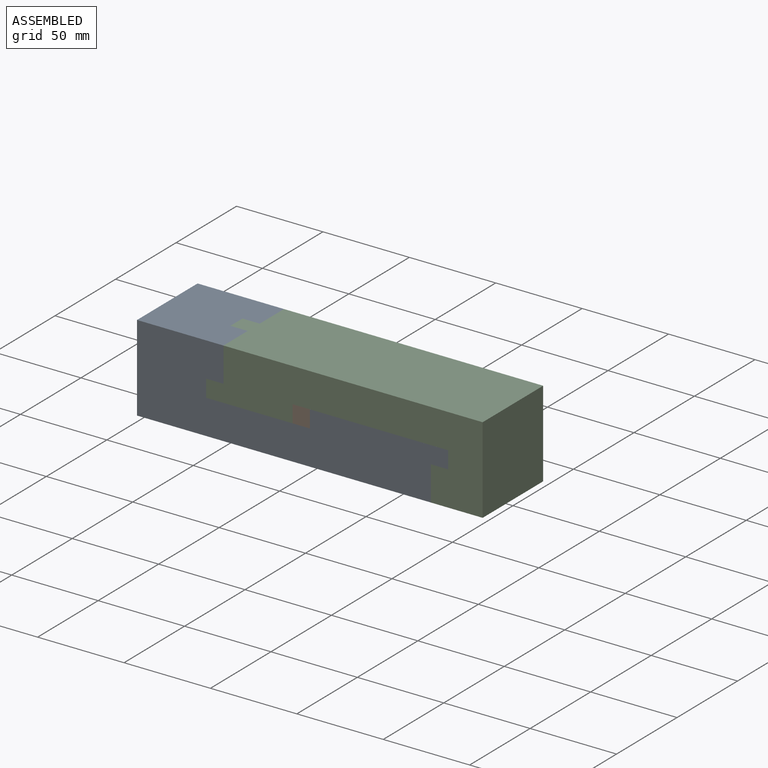
[diagram: assembled view]
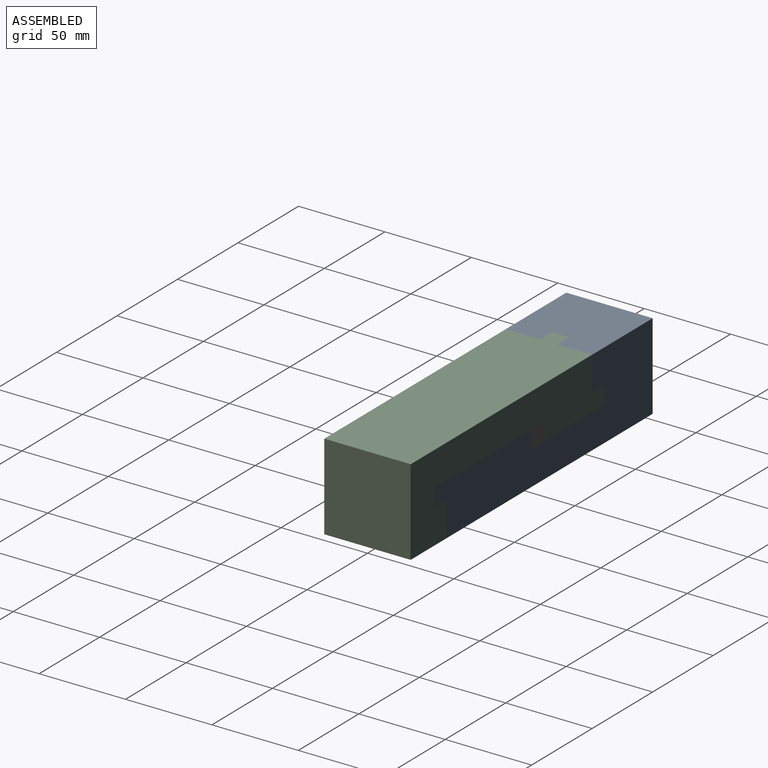
[diagram: assembled view, second angle]
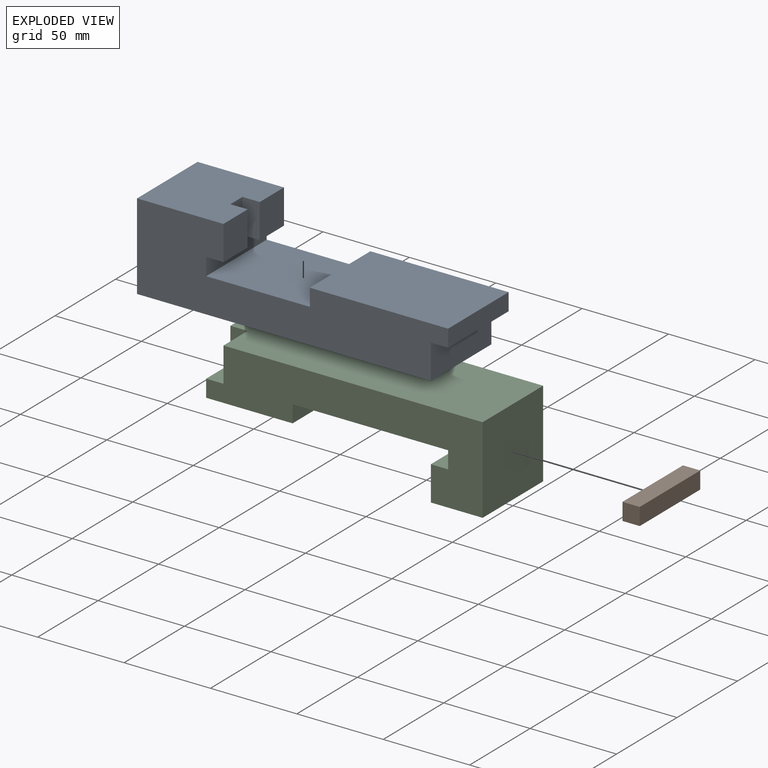
[diagram: exploded view]
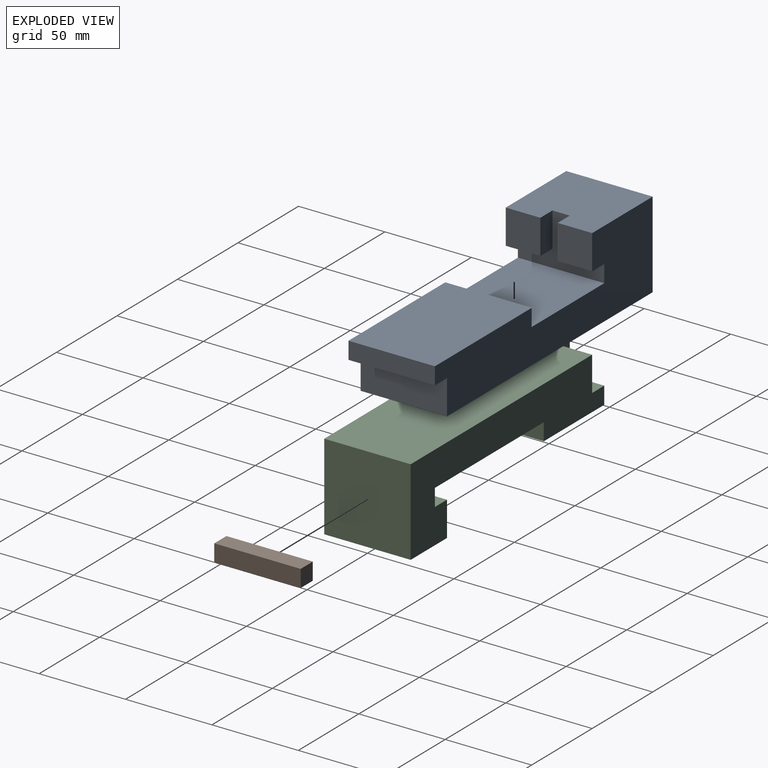
[diagram: exploded view, second angle]
ASSEMBLY  parts=3 mates=6
PART A: 18 faces, bbox 180x50x50 mm
  f0: plane 20x20mm, normal (1,0,0), area 400mm2, adj f3,f5,f8,f16
  f1: plane 20x10mm, normal (0,0,-1), area 200mm2, adj f4,f7,f9,f17
  f2: plane 170x50mm, normal (0,0,-1), area 8500mm2, adj f4,f5,f6,f15
  f3: plane 50x50mm, normal (0,0,1), area 2400mm2, adj f0,f4,f5,f6,f7,f9,f16,f17
  f4: plane 180x50mm, normal (0,1,0), area 5600mm2, adj f1,f2,f3,f6,f7,f9,f10,f11
  f5: plane 180x50mm, normal (0,-1,0), area 5600mm2, adj f0,f2,f3,f6,f8,f9,f10,f11
  f6: plane 50x50mm, normal (-1,0,0), area 2500mm2, adj f2,f3,f4,f5
  f7: plane 20x20mm, normal (1,0,0), area 400mm2, adj f1,f3,f4,f17
  f8: plane 20x10mm, normal (0,0,-1), area 200mm2, adj f0,f5,f9,f16
  f9: plane 50x30mm, normal (1,0,0), area 700mm2, adj f1,f3,f4,f5,f8,f10,f16,f17
  f10: plane 60x50mm, normal (0,0,1), area 3000mm2, adj f4,f5,f9,f11
  f11: plane 50x10mm, normal (-1,0,0), area 500mm2, adj f4,f5,f10,f12
  f12: plane 80x50mm, normal (0,0,1), area 4000mm2, adj f4,f5,f11,f13
  f13: plane 50x10mm, normal (1,0,0), area 500mm2, adj f4,f5,f12,f14
  f14: plane 50x10mm, normal (0,0,-1), area 500mm2, adj f4,f5,f13,f15
  f15: plane 50x20mm, normal (1,0,0), area 1000mm2, adj f2,f4,f5,f14
  f16: plane 20x10mm, normal (0,1,0), area 200mm2, adj f0,f3,f8,f9
  f17: plane 20x10mm, normal (0,-1,0), area 200mm2, adj f1,f3,f7,f9
PART B: 6 faces, bbox 10x50x10 mm
  f0: plane 50x10mm, normal (0,0,-1), area 500mm2, adj f1,f3,f4,f5
  f1: plane 50x10mm, normal (1,0,0), area 500mm2, adj f0,f2,f4,f5
  f2: plane 50x10mm, normal (0,0,1), area 500mm2, adj f1,f3,f4,f5
  f3: plane 50x10mm, normal (-1,0,0), area 500mm2, adj f0,f2,f4,f5
  f4: plane 10x10mm, normal (0,-1,0), area 100mm2, adj f0,f1,f2,f3
  f5: plane 10x10mm, normal (0,1,0), area 100mm2, adj f0,f1,f2,f3
PART C: 18 faces, bbox 160x50x50 mm
  f0: plane 20x20mm, normal (-1,0,0), area 400mm2, adj f4,f6,f14,f16
  f1: plane 20x10mm, normal (0,0,1), area 200mm2, adj f5,f7,f15,f17
  f2: plane 50x30mm, normal (0,0,-1), area 1500mm2, adj f3,f13,f14,f15
  f3: plane 50x50mm, normal (1,0,0), area 2500mm2, adj f2,f4,f14,f15
  f4: plane 160x50mm, normal (0,0,1), area 7600mm2, adj f0,f3,f5,f7,f14,f15,f16,f17
  f5: plane 20x20mm, normal (-1,0,0), area 400mm2, adj f1,f4,f15,f17
  f6: plane 20x10mm, normal (0,0,1), area 200mm2, adj f0,f7,f14,f16
  f7: plane 50x30mm, normal (-1,0,0), area 700mm2, adj f1,f4,f6,f8,f14,f15,f16,f17
  f8: plane 50x50mm, normal (0,0,-1), area 2500mm2, adj f7,f9,f14,f15
  f9: plane 50x10mm, normal (1,0,0), area 500mm2, adj f8,f10,f14,f15
  f10: plane 90x50mm, normal (0,0,-1), area 4500mm2, adj f9,f11,f14,f15
  f11: plane 50x10mm, normal (-1,0,0), area 500mm2, adj f10,f12,f14,f15
  f12: plane 50x10mm, normal (0,0,1), area 500mm2, adj f11,f13,f14,f15
  f13: plane 50x20mm, normal (-1,0,0), area 1000mm2, adj f2,f12,f14,f15
  f14: plane 160x50mm, normal (0,-1,0), area 4300mm2, adj f0,f2,f3,f4,f6,f7,f8,f9
  f15: plane 160x50mm, normal (0,1,0), area 4300mm2, adj f1,f2,f3,f4,f5,f7,f8,f9
  f16: plane 20x10mm, normal (0,-1,0), area 200mm2, adj f0,f4,f6,f7
  f17: plane 20x10mm, normal (0,1,0), area 200mm2, adj f1,f4,f5,f7
PLACE A at identity fixed
PLACE B t=(-5,0,0)mm
PLACE C t=(70,0,-25)mm
MATE planar C.f14 <-> A.f5  axis (0,-1,0) through (29.42,-25,8.37)mm
MATE planar C.f7 <-> A.f9  axis (-1,0,0) through (-60,0,4.29)mm
MATE planar A.f10 <-> C.f8  axis (0,0,1) through (-30,25,-5)mm
MATE planar A.f11 <-> B.f1  axis (-1,0,0) through (0,-25,0)mm
MATE planar B.f4 <-> A.f5  axis (0,-1,0) through (-5,-25,0)mm
MATE planar C.f10 <-> B.f2  axis (0,0,-1) through (-10,0,5)mm
